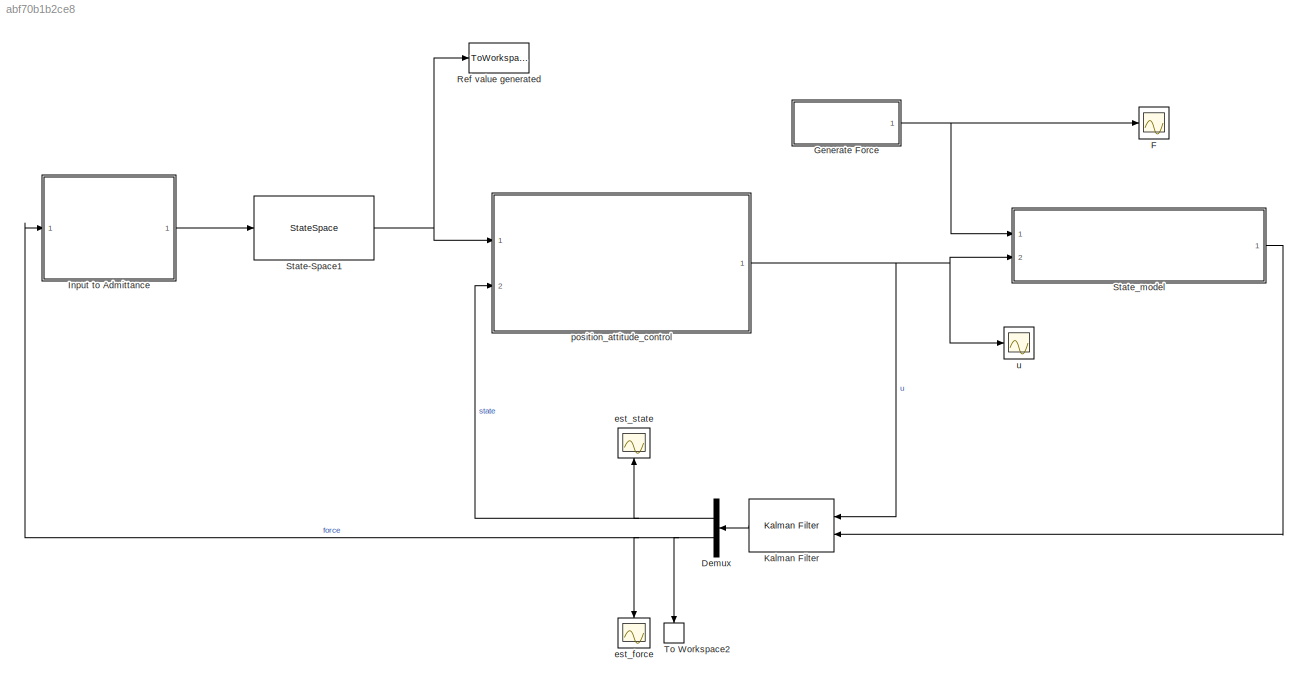
MODEL slx_abf70b1b2ce8
KIND model
CONFIG AbsTol = auto
CONFIG EnableMultiTasking = off
CONFIG FixedStep = auto
CONFIG MaxStep = auto
CONFIG MinStep = auto
CONFIG RelTol = 1e-3
CONFIG SampleTimeConstraint = Unconstrained
CONFIG Solver = VariableStepAuto
CONFIG SolverName = VariableStepAuto
CONFIG StartTime = 0.0
CONFIG StopTime = 20
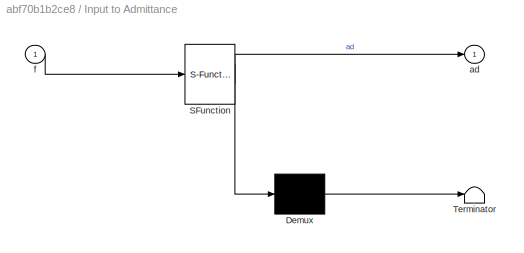
BLOCK [SubSystem]  Input to Admittance 
  ErrorFcn = Stateflow.Translate.translate
  PermitHierarchicalResolution = ExplicitOnly
  Ports = [1, 1]
  RequestExecContextInheritance = off
  SFBlockType = MATLAB Function
  TreatAsAtomicUnit = on
BLOCK [Demux]  Input to Admittance / Demux 
  Outputs = 1
  Ports = [1, 1]
BLOCK [S-Function]  Input to Admittance / SFunction 
  EnableBusSupport = on
  FunctionName = sf_sfun
  PortCounts = [1 2]
  Ports = [1, 2]
  SFcnIsStateOwnerBlock = off
  SFunctionDeploymentMode = off
  Tag = Stateflow S-Function pos_att 1
BLOCK [Terminator]  Input to Admittance / Terminator 
BLOCK [Outport]  Input to Admittance /ad
  IconDisplay = Port number
BLOCK [Inport]  Input to Admittance /f
  IconDisplay = Port number
BLOCK [Demux] Demux
  DisplayOption = bar
  Outputs = [15, 3]
  Ports = [1, 2]
BLOCK [Scope] F
  Floating = off
  NumInputPorts = 1
  Ports = [1]
  ScopeSpecificationString = Simulink.scopes.TimeScopeBlockCfg('CurrentConfiguration', extmgr.ConfigurationSet(extmgr.Configuration('Core','General UI',true),extmgr.Configuration('Core','Source UI',true),extmgr.Configuration('Sources','WiredSimulink',true,'DataLoggingVariableName','ScopeData7'),extmgr.Configuration('Visuals','Time Domain',true,'SerializedDisplays',{struct('MinYLimReal','-0.625','MaxYLimReal','5.625','YLabelRe...<+1501ch>
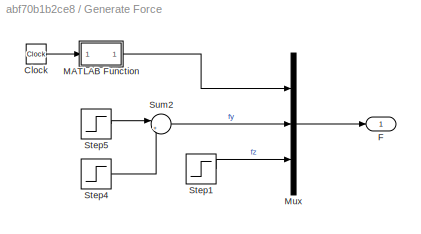
BLOCK [SubSystem] Generate Force
  Ports = [0, 1]
  RequestExecContextInheritance = off
BLOCK [Clock] Generate Force/Clock
BLOCK [Outport] Generate Force/F
  IconDisplay = Port number
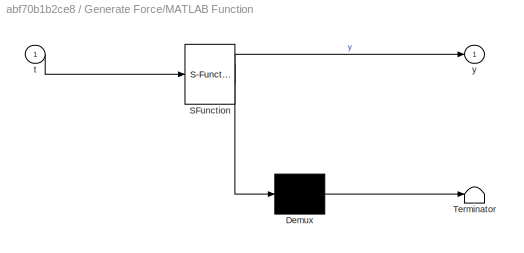
BLOCK [SubSystem] Generate Force/MATLAB Function
  ErrorFcn = Stateflow.Translate.translate
  PermitHierarchicalResolution = ExplicitOnly
  Ports = [1, 1]
  RequestExecContextInheritance = off
  SFBlockType = MATLAB Function
  TreatAsAtomicUnit = on
BLOCK [Demux] Generate Force/MATLAB Function/ Demux 
  Outputs = 1
  Ports = [1, 1]
BLOCK [S-Function] Generate Force/MATLAB Function/ SFunction 
  EnableBusSupport = on
  FunctionName = sf_sfun
  PortCounts = [1 2]
  Ports = [1, 2]
  SFcnIsStateOwnerBlock = off
  SFunctionDeploymentMode = off
  Tag = Stateflow S-Function pos_att 3
BLOCK [Terminator] Generate Force/MATLAB Function/ Terminator 
BLOCK [Inport] Generate Force/MATLAB Function/t
  IconDisplay = Port number
BLOCK [Outport] Generate Force/MATLAB Function/y
  IconDisplay = Port number
BLOCK [Mux] Generate Force/Mux
  DisplayOption = bar
  Inputs = 3
  Ports = [3, 1]
BLOCK [Step] Generate Force/Step1
  After = 0
  SampleTime = 0
BLOCK [Step] Generate Force/Step4
  After = 0
  SampleTime = 0
  Time = 6
BLOCK [Step] Generate Force/Step5
  After = 0
  SampleTime = 0
BLOCK [Sum] Generate Force/Sum2
  IconShape = round
  InputSameDT = off
  Inputs = |++
  OutDataTypeStr = Inherit: Inherit via internal rule
  Ports = [2, 1]
  SaturateOnIntegerOverflow = off
BLOCK [Reference] Kalman Filter   REF=ctrlSharedLib/Kalman Filter
  Ports = [2, 1]
  SourceBlock = ctrlSharedLib/Kalman Filter
  SourceProductBaseCode = CT
  SourceProductName = Control System Toolbox
  SourceType = ctrlKalmanFilter
BLOCK [ToWorkspace] Ref value generated
  FixptAsFi = on
  MaxDataPoints = inf
  Ports = [1]
  SampleTime = -1
  SaveFormat = Structure With Time
  VariableName = ref
BLOCK [StateSpace] State-Space1
  A = A_ad
  B = B_ad
  C = C_ad
  D = D_ad
  InitialCondition = [0 0 0 0 0 0]
  Ports = [1, 1]
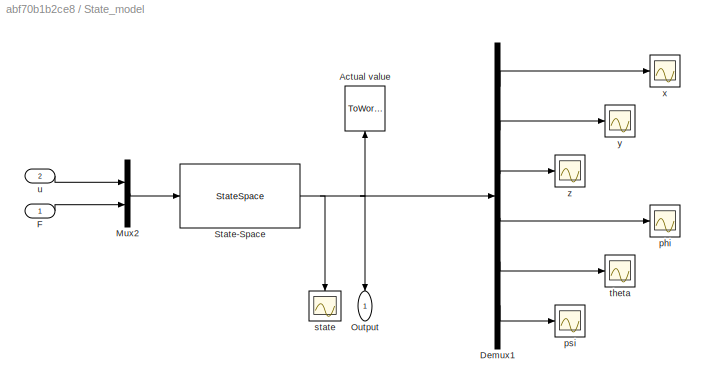
BLOCK [SubSystem] State_model
  Ports = [2, 1]
  RequestExecContextInheritance = off
BLOCK [ToWorkspace] State_model/ Actual value
  FixptAsFi = on
  MaxDataPoints = inf
  Ports = [1]
  SampleTime = -1
  SaveFormat = Structure With Time
  VariableName = s
BLOCK [Demux] State_model/Demux1
  DisplayOption = bar
  Outputs = 6
  Ports = [1, 6]
BLOCK [Inport] State_model/F
  IconDisplay = Port number
BLOCK [Mux] State_model/Mux2
  DisplayOption = bar
  Inputs = 2
  Ports = [2, 1]
BLOCK [Outport] State_model/Output
  IconDisplay = Port number
BLOCK [StateSpace] State_model/State-Space
  A = A
  B = B
  C = C
  D = D
  InitialCondition = init_state
  Ports = [1, 1]
BLOCK [Scope] State_model/phi
  Floating = off
  NumInputPorts = 1
  Ports = [1]
  ScopeSpecificationString = Simulink.scopes.TimeScopeBlockCfg('CurrentConfiguration', extmgr.ConfigurationSet(extmgr.Configuration('Core','General UI',true),extmgr.Configuration('Core','Source UI',true),extmgr.Configuration('Sources','WiredSimulink',true,'DataLoggingVariableName','ScopeData1'),extmgr.Configuration('Visuals','Time Domain',true,'SerializedDisplays',{struct('MinYLimReal','-0.23903','MaxYLimReal','0.3409','YLabe...<+1436ch>
BLOCK [Scope] State_model/psi
  Floating = off
  NumInputPorts = 1
  Ports = [1]
  ScopeSpecificationString = Simulink.scopes.TimeScopeBlockCfg('CurrentConfiguration', extmgr.ConfigurationSet(extmgr.Configuration('Core','General UI',true),extmgr.Configuration('Core','Source UI',true),extmgr.Configuration('Sources','WiredSimulink',true,'DataLoggingVariableName','ScopeData2'),extmgr.Configuration('Visuals','Time Domain',true,'SerializedDisplays',{struct('MinYLimReal','-0.00174','MaxYLimReal','0.00211','YLab...<+1420ch>
BLOCK [Scope] State_model/state
  Floating = off
  NumInputPorts = 1
  Ports = [1]
  ScopeSpecificationString = Simulink.scopes.TimeScopeBlockCfg('CurrentConfiguration', extmgr.ConfigurationSet(extmgr.Configuration('Core','General UI',true),extmgr.Configuration('Core','Source UI',true),extmgr.Configuration('Sources','WiredSimulink',true,'DataLoggingVariableName','ScopeData1'),extmgr.Configuration('Visuals','Time Domain',true,'SerializedDisplays',{struct('MinYLimReal','-7.57819','MaxYLimReal','60.96','YLabel...<+1469ch>
BLOCK [Scope] State_model/theta
  Floating = off
  NumInputPorts = 1
  Ports = [1]
  ScopeSpecificationString = Simulink.scopes.TimeScopeBlockCfg('CurrentConfiguration', extmgr.ConfigurationSet(extmgr.Configuration('Core','General UI',true),extmgr.Configuration('Core','Source UI',true),extmgr.Configuration('Sources','WiredSimulink',true,'DataLoggingVariableName','ScopeData3'),extmgr.Configuration('Visuals','Time Domain',true,'SerializedDisplays',{struct('MinYLimReal','-0.01318','MaxYLimReal','0.01522','YLab...<+1420ch>
BLOCK [Inport] State_model/u 
  IconDisplay = Port number
  Port = 2
BLOCK [Scope] State_model/x 
  Floating = off
  NumInputPorts = 1
  Ports = [1]
  ScopeSpecificationString = Simulink.scopes.TimeScopeBlockCfg('CurrentConfiguration', extmgr.ConfigurationSet(extmgr.Configuration('Core','General UI',true),extmgr.Configuration('Core','Source UI',true),extmgr.Configuration('Sources','WiredSimulink',true,'DataLoggingVariableName','ScopeData4'),extmgr.Configuration('Visuals','Time Domain',true,'SerializedDisplays',{struct('MinYLimReal','-1.71921','MaxYLimReal','15.47287','YLa...<+1444ch>
BLOCK [Scope] State_model/y
  Floating = off
  NumInputPorts = 1
  Ports = [1]
  ScopeSpecificationString = Simulink.scopes.TimeScopeBlockCfg('CurrentConfiguration', extmgr.ConfigurationSet(extmgr.Configuration('Core','General UI',true),extmgr.Configuration('Core','Source UI',true),extmgr.Configuration('Sources','WiredSimulink',true,'DataLoggingVariableName','ScopeData5'),extmgr.Configuration('Visuals','Time Domain',true,'SerializedDisplays',{struct('MinYLimReal','-1.64456','MaxYLimReal','14.80076','YLa...<+1473ch>
BLOCK [Scope] State_model/z
  Floating = off
  NumInputPorts = 1
  Ports = [1]
  ScopeSpecificationString = Simulink.scopes.TimeScopeBlockCfg('CurrentConfiguration', extmgr.ConfigurationSet(extmgr.Configuration('Core','General UI',true),extmgr.Configuration('Core','Source UI',true),extmgr.Configuration('Sources','WiredSimulink',true,'DataLoggingVariableName','ScopeData6'),extmgr.Configuration('Visuals','Time Domain',true,'SerializedDisplays',{struct('MinYLimReal','-0.00578','MaxYLimReal','0.00478','YLab...<+1469ch>
BLOCK [ToWorkspace] To Workspace2
  FixptAsFi = on
  MaxDataPoints = inf
  Ports = [1]
  SampleTime = -1
  SaveFormat = Structure With Time
  VariableName = f
BLOCK [Scope] est_force
  Floating = off
  NumInputPorts = 1
  Ports = [1]
  ScopeSpecificationString = Simulink.scopes.TimeScopeBlockCfg('CurrentConfiguration', extmgr.ConfigurationSet(extmgr.Configuration('Core','General UI',true),extmgr.Configuration('Core','Source UI',true),extmgr.Configuration('Sources','WiredSimulink',true,'DataLoggingVariableName','ScopeData2'),extmgr.Configuration('Visuals','Time Domain',true,'SerializedDisplays',{struct('MinYLimReal','-0.01421','MaxYLimReal','0.12791','YLab...<+1464ch>
BLOCK [Scope] est_state
  Floating = off
  NumInputPorts = 1
  Ports = [1]
  ScopeSpecificationString = Simulink.scopes.TimeScopeBlockCfg('CurrentConfiguration', extmgr.ConfigurationSet(extmgr.Configuration('Core','General UI',true),extmgr.Configuration('Core','Source UI',true),extmgr.Configuration('Sources','WiredSimulink',true,'DataLoggingVariableName','ScopeData3'),extmgr.Configuration('Visuals','Time Domain',true,'SerializedDisplays',{struct('MinYLimReal','-12.80259','MaxYLimReal','61.59453','YL...<+1571ch>
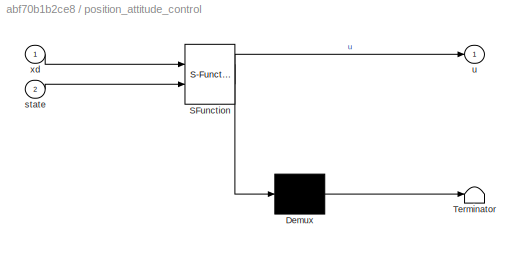
BLOCK [SubSystem] position_attitude_control
  ErrorFcn = Stateflow.Translate.translate
  PermitHierarchicalResolution = ExplicitOnly
  Ports = [2, 1]
  RequestExecContextInheritance = off
  SFBlockType = MATLAB Function
  TreatAsAtomicUnit = on
BLOCK [Demux] position_attitude_control/ Demux 
  Outputs = 1
  Ports = [1, 1]
BLOCK [S-Function] position_attitude_control/ SFunction 
  EnableBusSupport = on
  FunctionName = sf_sfun
  PortCounts = [2 2]
  Ports = [2, 2]
  SFcnIsStateOwnerBlock = off
  SFunctionDeploymentMode = off
  Tag = Stateflow S-Function pos_att 2
BLOCK [Terminator] position_attitude_control/ Terminator 
BLOCK [Inport] position_attitude_control/state
  IconDisplay = Port number
  Port = 2
BLOCK [Outport] position_attitude_control/u
  IconDisplay = Port number
BLOCK [Inport] position_attitude_control/xd
  IconDisplay = Port number
BLOCK [Scope] u 
  Floating = off
  NumInputPorts = 1
  Ports = [1]
  ScopeSpecificationString = Simulink.scopes.TimeScopeBlockCfg('CurrentConfiguration', extmgr.ConfigurationSet(extmgr.Configuration('Core','General UI',true),extmgr.Configuration('Core','Source UI',true),extmgr.Configuration('Sources','WiredSimulink',true,'DataLoggingVariableName','ScopeData4'),extmgr.Configuration('Visuals','Time Domain',true,'SerializedDisplays',{struct('MinYLimReal','-0.45951','MaxYLimReal','0.45573','YLab...<+1480ch>
LINE  Input to Admittance :1 -> State-Space1:1
NET Demux:1 -> est_state:1, position_attitude_control:2
NET Demux:2 ->  Input to Admittance :1, To Workspace2:1, est_force:1
LINE Generate Force/Clock:1 -> Generate Force/MATLAB Function:1
LINE Generate Force/MATLAB Function:1 -> Generate Force/Mux:1
LINE Generate Force/Mux:1 -> Generate Force/F:1
LINE Generate Force/Step1:1 -> Generate Force/Mux:3
LINE Generate Force/Step4:1 -> Generate Force/Sum2:2
LINE Generate Force/Step5:1 -> Generate Force/Sum2:1
LINE Generate Force/Sum2:1 -> Generate Force/Mux:2
NET Generate Force:1 -> F:1, State_model:1
LINE Kalman Filter :1 -> Demux:1
NET State-Space1:1 -> Ref value generated:1, position_attitude_control:1
LINE State_model/Demux1:1 -> State_model/x :1
LINE State_model/Demux1:2 -> State_model/y:1
LINE State_model/Demux1:3 -> State_model/z:1
LINE State_model/Demux1:4 -> State_model/phi:1
LINE State_model/Demux1:5 -> State_model/theta:1
LINE State_model/Demux1:6 -> State_model/psi:1
LINE State_model/F:1 -> State_model/Mux2:2
LINE State_model/Mux2:1 -> State_model/State-Space:1
NET State_model/State-Space:1 -> State_model/ Actual value:1, State_model/Demux1:1, State_model/Output:1, State_model/state:1
LINE State_model/u :1 -> State_model/Mux2:1
LINE State_model:1 -> Kalman Filter :2
NET position_attitude_control:1 -> Kalman Filter :1, State_model:2, u :1
note: NET lines group one-source signal fan-out (src -> all destinations, sorted); 1:1 wires keep LINE
CHART  Input to Admittance  states=1 transitions=1
  STATE_LABEL 'eML_blk_kernel()'
  STATE_LABEL "SCRIPT:\nfunction ad = Input_desired(f)\n\nx_d = 1;\ny_d = 1;\nz_d = 5;\n\nfx = f(1);\n\nfy = f(2);\n\nfz = f(3);\n\nad = [x_d, y_d, z_d, fx, fy, fz]';\n"
CHART position_attitude_control states=1 transitions=1
  STATE_LABEL 'eML_blk_kernel()'
  STATE_LABEL 'SCRIPT:\nfunction u = Position_attitude_control(xd, state)\ng = 9.81;   % [ms^-2]\nIx = 0.5;   % [kg*m^2]\nIy = 0.5;\nIz = 0.9;\nIr = 0.005;\nOm_r = 70;  % [s^-2]\nm = 2;      % [kg]\nl = 0.25;   % [m]\nd = 0.03;\nm1 = 0.1;\nT1 = 0.001;\nT2 = 0.001;\n\n% State\n\nx = state(1);\ny = state(2);\nz = state(3);\nvx = state(4);\nvy = state(5);\nvz = state(6);\nphi = state(7);\ntheta = state(8);\npsi = state(9);\nphi_dot = state(...<+864ch>'
CHART Generate Force/MATLAB Function states=1 transitions=1
  STATE_LABEL 'eML_blk_kernel()'
  STATE_LABEL 'SCRIPT:\nfunction y = fcn(t)\n% if t > 1 && t < 1.5\n%     fx=1;\n% else\n%     fx=0;\n% end\n\ny = sin(t);\n'
